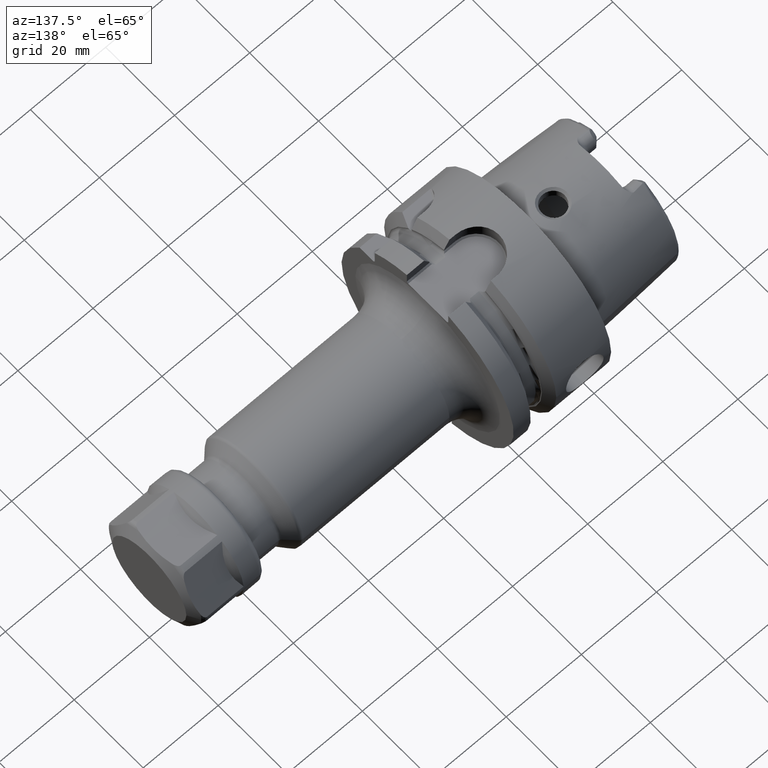
[diagram: clean part render]
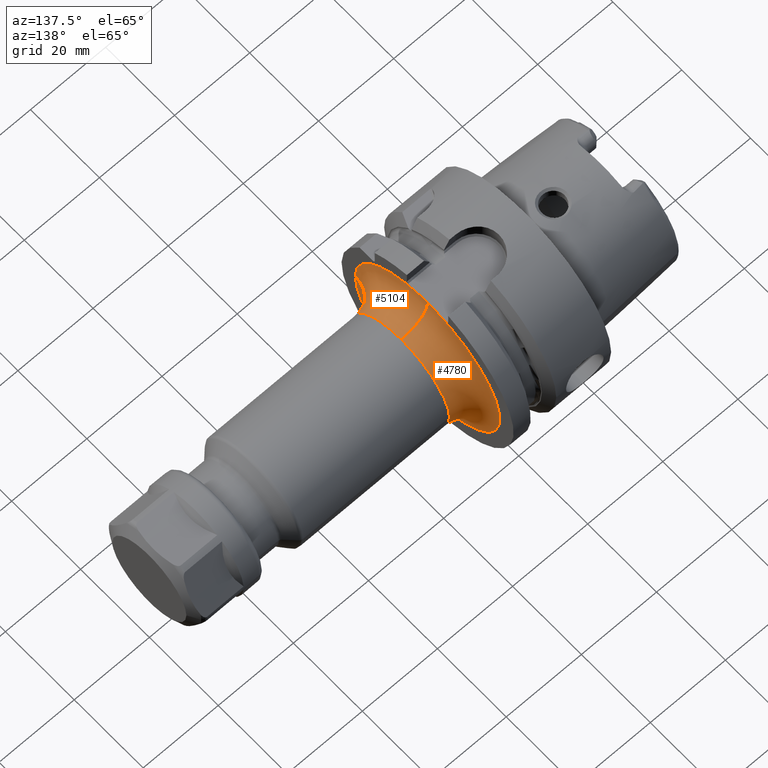
[diagram: same view with one multi-face feature highlighted, each face labeled with its STEP entity id]
A machine part, auxiliary view. The highlighted faces form ONE feature: a constant-radius fillet chain: 2 tangent blend faces with common blend radius 7 mm. The faces share edges in the B-rep.
Their STEP definitions:
[1] entity #4780 (Torus):
#1363=CARTESIAN_POINT('',(2.595E1,2.046926799542E0,-2.090000223253E1));
#1364=CARTESIAN_POINT('',(2.595E1,1.592408275712E0,-2.090000223253E1));
#1365=CARTESIAN_POINT('',(2.595075189099E1,6.831463133951E-1,
-2.089999906019E1));
#1366=CARTESIAN_POINT('',(2.595075189092E1,-6.831411261963E-1,
-2.089999994052E1));
#1367=CARTESIAN_POINT('',(2.595E1,-1.592424138717E0,-2.090000076532E1));
#1368=CARTESIAN_POINT('',(2.595E1,-2.046942624870E0,-2.090000076532E1));
#1370=CARTESIAN_POINT('',(3.295E1,-2.1E1,4.518468932346E-13));
#1371=DIRECTION('',(0.E0,-2.151577527254E-14,-1.E0));
#1372=DIRECTION('',(-1.E0,0.E0,0.E0));
#1373=AXIS2_PLACEMENT_3D('',#1370,#1371,#1372);
#1375=CARTESIAN_POINT('',(3.295E1,0.E0,0.E0));
#1376=DIRECTION('',(1.E0,0.E0,0.E0));
#1377=DIRECTION('',(0.E0,-1.E0,0.E0));
#1378=AXIS2_PLACEMENT_3D('',#1375,#1376,#1377);
#1380=CARTESIAN_POINT('',(2.595E1,0.E0,0.E0));
#1381=DIRECTION('',(-1.E0,0.E0,0.E0));
#1382=DIRECTION('',(0.E0,9.747397993412E-2,9.952380736466E-1));
#1383=AXIS2_PLACEMENT_3D('',#1380,#1381,#1382);
#1385=CARTESIAN_POINT('',(2.595E1,0.E0,0.E0));
#1386=DIRECTION('',(1.E0,0.E0,0.E0));
#1387=DIRECTION('',(0.E0,-1.E0,0.E0));
#1388=AXIS2_PLACEMENT_3D('',#1385,#1386,#1387);
#1612=CARTESIAN_POINT('',(2.595071432215E1,-1.814810210603E-4,2.09E1));
#1692=CARTESIAN_POINT('',(2.595E1,2.046942662381E0,2.090000076830E1));
#1693=CARTESIAN_POINT('',(2.595E1,1.819787875244E0,2.090000076830E1));
#1694=CARTESIAN_POINT('',(2.595020463222E1,1.365283685141E0,2.089999964146E1));
#1695=CARTESIAN_POINT('',(2.595060210671E1,6.828101616889E-1,2.090000010244E1));
#1696=CARTESIAN_POINT('',(2.595071435040E1,2.275408499473E-1,2.09E1));
#1697=CARTESIAN_POINT('',(2.595071432215E1,-1.814810210603E-4,2.09E1));
#1699=CARTESIAN_POINT('',(3.295E1,-1.823493512948E-4,2.099999999921E1));
#1700=DIRECTION('',(0.E0,-9.999999999623E-1,-8.683302442611E-6));
#1701=DIRECTION('',(-9.998979539786E-1,1.240471767742E-7,-1.428571417261E-2));
#1702=AXIS2_PLACEMENT_3D('',#1699,#1700,#1701);
#1714=CARTESIAN_POINT('',(3.295E1,0.E0,0.E0));
#1715=DIRECTION('',(1.E0,0.E0,0.E0));
#1716=DIRECTION('',(0.E0,1.E0,0.E0));
#1717=AXIS2_PLACEMENT_3D('',#1714,#1715,#1716);
#3309=CARTESIAN_POINT('',(2.595E1,-2.1E1,0.E0));
#3310=CARTESIAN_POINT('',(2.595E1,-2.046953376682E0,-2.089999956636E1));
#3311=VERTEX_POINT('',#3309);
#3312=VERTEX_POINT('',#3310);
#3315=VERTEX_POINT('',#1612);
#3316=CARTESIAN_POINT('',(3.295E1,-1.044443267694E-4,1.399999999961E1));
#3317=CARTESIAN_POINT('',(3.295E1,-1.4E1,0.E0));
#3318=VERTEX_POINT('',#3316);
#3319=VERTEX_POINT('',#3317);
#3320=VERTEX_POINT('',#1692);
#3321=CARTESIAN_POINT('',(3.295E1,1.4E1,0.E0));
#3322=VERTEX_POINT('',#3321);
#3331=CARTESIAN_POINT('',(2.595E1,2.046926799542E0,-2.090000223253E1));
#3332=VERTEX_POINT('',#3331);
#4758=CARTESIAN_POINT('',(3.295E1,0.E0,0.E0));
#4759=DIRECTION('',(1.E0,0.E0,0.E0));
#4760=DIRECTION('',(0.E0,9.999849205750E-1,-5.491686681722E-3));
#4761=AXIS2_PLACEMENT_3D('',#4758,#4759,#4760);
#4762=TOROIDAL_SURFACE('',#4761,2.1E1,7.E0);
#4763=ORIENTED_EDGE('',*,*,#4727,.T.);
#4765=ORIENTED_EDGE('',*,*,#4764,.F.);
#4767=ORIENTED_EDGE('',*,*,#4766,.T.);
#4769=ORIENTED_EDGE('',*,*,#4768,.T.);
#4771=ORIENTED_EDGE('',*,*,#4770,.T.);
#4773=ORIENTED_EDGE('',*,*,#4772,.F.);
#4775=ORIENTED_EDGE('',*,*,#4774,.F.);
#4777=ORIENTED_EDGE('',*,*,#4776,.T.);
#4778=EDGE_LOOP('',(#4763,#4765,#4767,#4769,#4771,#4773,#4775,#4777));
#4779=FACE_OUTER_BOUND('',#4778,.F.);
#4780=ADVANCED_FACE('',(#4779),#4762,.F.);
#1369=B_SPLINE_CURVE_WITH_KNOTS('',3,(#1363,#1364,#1365,#1366,#1367,#1368),
.UNSPECIFIED.,.F.,.F.,(4,1,1,4),(0.E0,3.333333333333E-1,6.666666666667E-1,1.E0),
.UNSPECIFIED.);
#1374=CIRCLE('',#1373,7.E0);
#1379=CIRCLE('',#1378,1.4E1);
#1384=CIRCLE('',#1383,2.1E1);
#1389=CIRCLE('',#1388,2.1E1);
#1698=B_SPLINE_CURVE_WITH_KNOTS('',3,(#1692,#1693,#1694,#1695,#1696,#1697),
.UNSPECIFIED.,.F.,.F.,(4,1,1,4),(0.E0,3.333333333333E-1,6.666666666667E-1,1.E0),
.UNSPECIFIED.);
#1703=CIRCLE('',#1702,7.E0);
#1718=CIRCLE('',#1717,1.4E1);
#4727=EDGE_CURVE('',#3332,#3312,#1369,.T.);
#4764=EDGE_CURVE('',#3311,#3312,#1389,.T.);
#4766=EDGE_CURVE('',#3311,#3319,#1374,.T.);
#4768=EDGE_CURVE('',#3319,#3322,#1379,.T.);
#4770=EDGE_CURVE('',#3322,#3318,#1718,.T.);
#4772=EDGE_CURVE('',#3315,#3318,#1703,.T.);
#4774=EDGE_CURVE('',#3320,#3315,#1698,.T.);
#4776=EDGE_CURVE('',#3320,#3332,#1384,.T.);
[2] entity #5104 (Torus):
#1370=CARTESIAN_POINT('',(3.295E1,-2.1E1,4.518468932346E-13));
#1371=DIRECTION('',(0.E0,-2.151577527254E-14,-1.E0));
#1372=DIRECTION('',(-1.E0,0.E0,0.E0));
#1373=AXIS2_PLACEMENT_3D('',#1370,#1371,#1372);
#1414=CARTESIAN_POINT('',(2.595E1,0.E0,0.E0));
#1415=DIRECTION('',(1.E0,0.E0,0.E0));
#1416=DIRECTION('',(0.E0,-9.747383121270E-2,9.952380882124E-1));
#1417=AXIS2_PLACEMENT_3D('',#1414,#1415,#1416);
#1612=CARTESIAN_POINT('',(2.595071432215E1,-1.814810210603E-4,2.09E1));
#1613=CARTESIAN_POINT('',(2.595071429390E1,-2.278648878721E-1,2.09E1));
#1614=CARTESIAN_POINT('',(2.595060197581E1,-6.830528713898E-1,
2.090000029887E1));
#1615=CARTESIAN_POINT('',(2.595020458113E1,-1.365381077929E0,2.089999895395E1));
#1616=CARTESIAN_POINT('',(2.595E1,-1.819798609702E0,2.090000224154E1));
#1617=CARTESIAN_POINT('',(2.595E1,-2.046926568754E0,2.090000224154E1));
#1699=CARTESIAN_POINT('',(3.295E1,-1.823493512948E-4,2.099999999921E1));
#1700=DIRECTION('',(0.E0,-9.999999999623E-1,-8.683302442611E-6));
#1701=DIRECTION('',(-9.998979539786E-1,1.240471767742E-7,-1.428571417261E-2));
#1702=AXIS2_PLACEMENT_3D('',#1699,#1700,#1701);
#1709=CARTESIAN_POINT('',(3.295E1,0.E0,0.E0));
#1710=DIRECTION('',(1.E0,0.E0,0.E0));
#1711=DIRECTION('',(0.E0,-7.460309054955E-6,9.999999999722E-1));
#1712=AXIS2_PLACEMENT_3D('',#1709,#1710,#1711);
#3309=CARTESIAN_POINT('',(2.595E1,-2.1E1,0.E0));
#3311=VERTEX_POINT('',#3309);
#3313=CARTESIAN_POINT('',(2.595E1,-2.046950455467E0,2.089999985246E1));
#3314=VERTEX_POINT('',#3313);
#3315=VERTEX_POINT('',#1612);
#3316=CARTESIAN_POINT('',(3.295E1,-1.044443267694E-4,1.399999999961E1));
#3317=CARTESIAN_POINT('',(3.295E1,-1.4E1,0.E0));
#3318=VERTEX_POINT('',#3316);
#3319=VERTEX_POINT('',#3317);
#5091=CARTESIAN_POINT('',(3.295E1,0.E0,0.E0));
#5092=DIRECTION('',(1.E0,0.E0,0.E0));
#5093=DIRECTION('',(0.E0,1.485959642860E-3,-9.999988959614E-1));
#5094=AXIS2_PLACEMENT_3D('',#5091,#5092,#5093);
#5095=TOROIDAL_SURFACE('',#5094,2.1E1,7.E0);
#5096=ORIENTED_EDGE('',*,*,#4805,.F.);
#5097=ORIENTED_EDGE('',*,*,#5067,.F.);
#5098=ORIENTED_EDGE('',*,*,#4772,.T.);
#5100=ORIENTED_EDGE('',*,*,#5099,.T.);
#5101=ORIENTED_EDGE('',*,*,#4766,.F.);
#5102=EDGE_LOOP('',(#5096,#5097,#5098,#5100,#5101));
#5103=FACE_OUTER_BOUND('',#5102,.F.);
#5104=ADVANCED_FACE('',(#5103),#5095,.F.);
#1374=CIRCLE('',#1373,7.E0);
#1418=CIRCLE('',#1417,2.1E1);
#1618=B_SPLINE_CURVE_WITH_KNOTS('',3,(#1612,#1613,#1614,#1615,#1616,#1617),
.UNSPECIFIED.,.F.,.F.,(4,1,1,4),(0.E0,3.333333333333E-1,6.666666666667E-1,1.E0),
.UNSPECIFIED.);
#1703=CIRCLE('',#1702,7.E0);
#1713=CIRCLE('',#1712,1.4E1);
#4766=EDGE_CURVE('',#3311,#3319,#1374,.T.);
#4772=EDGE_CURVE('',#3315,#3318,#1703,.T.);
#4805=EDGE_CURVE('',#3314,#3311,#1418,.T.);
#5067=EDGE_CURVE('',#3315,#3314,#1618,.T.);
#5099=EDGE_CURVE('',#3318,#3319,#1713,.T.);